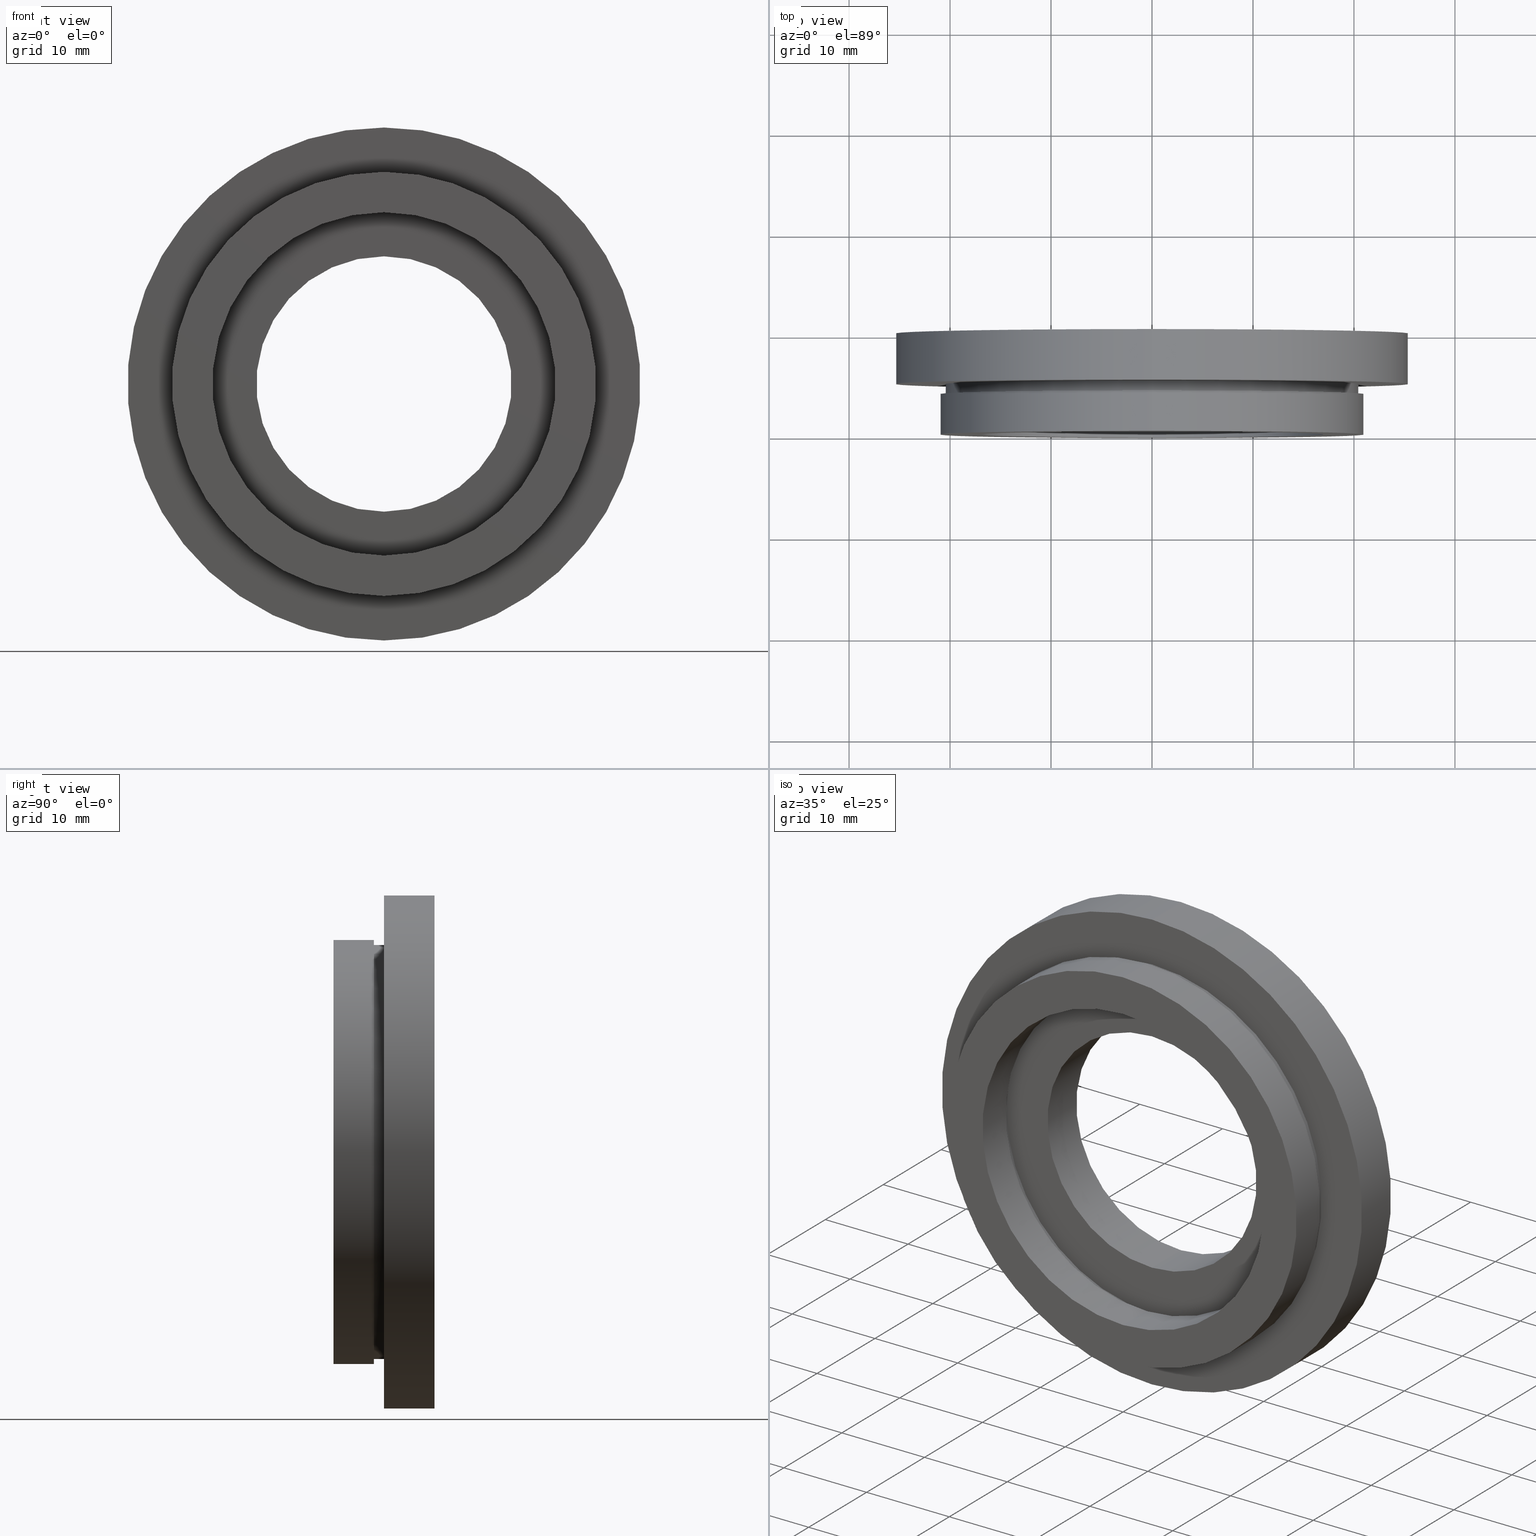
[diagram: canonical four-view strip — front | top / right | iso, engineering-drawing reading convention]
A machine part, canonical four-view strip (front | top / right | iso — engineering-drawing reading convention). The complete STEP part file that produces these views, byte-faithful:
ISO-10303-21;
HEADER;
FILE_DESCRIPTION (( 'STEP AP214' ),
    '1' );
FILE_NAME ('504120.STEP',
    '2019-10-10T06:59:44',
    ( 'user' ),
    ( '΢���й�' ),
    'SwSTEP 2.0',
    'SolidWorks 2016',
    '' );
FILE_SCHEMA (( 'AUTOMOTIVE_DESIGN' ));
ENDSEC;

DATA;
#1 = VERTEX_POINT ( 'NONE', #493 ) ;
#2 = CARTESIAN_POINT ( 'NONE',  ( 0.0000000000000000000, 10.00000000000000000, 0.0000000000000000000 ) ) ;
#3 = PRESENTATION_LAYER_ASSIGNMENT (  '', '', ( #488 ) ) ;
#4 = CARTESIAN_POINT ( 'NONE',  ( 0.0000000000000000000, 0.0000000000000000000, 0.0000000000000000000 ) ) ;
#5 = AXIS2_PLACEMENT_3D ( 'NONE', #318, #568, #622 ) ;
#6 = DIRECTION ( 'NONE',  ( -0.0000000000000000000, 1.000000000000000000, -0.0000000000000000000 ) ) ;
#7 = PRODUCT_RELATED_PRODUCT_CATEGORY ( 'part', '', ( #22 ) ) ;
#8 = ORIENTED_EDGE ( 'NONE', *, *, #431, .F. ) ;
#9 = PLANE ( 'NONE',  #567 ) ;
#10 = ORIENTED_EDGE ( 'NONE', *, *, #144, .F. ) ;
#11 = AXIS2_PLACEMENT_3D ( 'NONE', #181, #411, #29 ) ;
#12 =( LENGTH_UNIT ( ) NAMED_UNIT ( * ) SI_UNIT ( .MILLI., .METRE. ) );
#13 = CARTESIAN_POINT ( 'NONE',  ( 0.0000000000000000000, 4.000000000000000000, 0.0000000000000000000 ) ) ;
#14 = PRESENTATION_LAYER_ASSIGNMENT (  '', '', ( #80 ) ) ;
#15 = ORIENTED_EDGE ( 'NONE', *, *, #209, .F. ) ;
#16 = CARTESIAN_POINT ( 'NONE',  ( 0.0000000000000000000, 4.000000000000000000, 17.60000000000000100 ) ) ;
#17 = FACE_OUTER_BOUND ( 'NONE', #412, .T. ) ;
#18 = AXIS2_PLACEMENT_3D ( 'NONE', #2, #624, #59 ) ;
#19 = CIRCLE ( 'NONE', #109, 21.00000000000000000 ) ;
#20 = DIRECTION ( 'NONE',  ( -0.0000000000000000000, 1.000000000000000000, -0.0000000000000000000 ) ) ;
#21 = DIRECTION ( 'NONE',  ( 0.0000000000000000000, 0.0000000000000000000, 1.000000000000000000 ) ) ;
#22 = PRODUCT ( '504120', '504120', '', ( #94 ) ) ;
#23 = AXIS2_PLACEMENT_3D ( 'NONE', #439, #161, #168 ) ;
#24 = PRESENTATION_LAYER_ASSIGNMENT (  '', '', ( #44 ) ) ;
#25 = AXIS2_PLACEMENT_3D ( 'NONE', #13, #20, #268 ) ;
#26 = VERTEX_POINT ( 'NONE', #142 ) ;
#27 = EDGE_CURVE ( 'NONE', #320, #60, #290, .T. ) ;
#28 =( NAMED_UNIT ( * ) PLANE_ANGLE_UNIT ( ) SI_UNIT ( $, .RADIAN. ) );
#29 = DIRECTION ( 'NONE',  ( 0.0000000000000000000, -0.0000000000000000000, -1.000000000000000000 ) ) ;
#30 = FACE_OUTER_BOUND ( 'NONE', #356, .T. ) ;
#31 = EDGE_LOOP ( 'NONE', ( #32, #556, #113, #262 ) ) ;
#32 = ORIENTED_EDGE ( 'NONE', *, *, #158, .F. ) ;
#33 = EDGE_LOOP ( 'NONE', ( #157, #617 ) ) ;
#34 = FACE_OUTER_BOUND ( 'NONE', #350, .T. ) ;
#35 = EDGE_CURVE ( 'NONE', #220, #266, #114, .T. ) ;
#36 = CARTESIAN_POINT ( 'NONE',  ( 0.0000000000000000000, 4.999999999999999100, 17.60000000000000100 ) ) ;
#37 = CIRCLE ( 'NONE', #610, 25.39999999999999900 ) ;
#38 = DIRECTION ( 'NONE',  ( 0.0000000000000000000, -0.0000000000000000000, -1.000000000000000000 ) ) ;
#39 = SURFACE_STYLE_FILL_AREA ( #308 ) ;
#40 = PRESENTATION_STYLE_ASSIGNMENT (( #205 ) ) ;
#41 = CARTESIAN_POINT ( 'NONE',  ( 2.571758278209441700E-015, 0.0000000000000000000, -21.00000000000000000 ) ) ;
#42 = FACE_BOUND ( 'NONE', #467, .T. ) ;
#43 = ORIENTED_EDGE ( 'NONE', *, *, #158, .T. ) ;
#44 = STYLED_ITEM ( 'NONE', ( #335 ), #349 ) ;
#45 = FACE_BOUND ( 'NONE', #578, .T. ) ;
#46 = AXIS2_PLACEMENT_3D ( 'NONE', #463, #507, #501 ) ;
#47 = CYLINDRICAL_SURFACE ( 'NONE', #314, 12.64500000000000100 ) ;
#48 = DIRECTION ( 'NONE',  ( 0.0000000000000000000, -1.000000000000000000, 0.0000000000000000000 ) ) ;
#49 = COLOUR_RGB ( '',1.000000000000000000, 1.000000000000000000, 1.000000000000000000 ) ;
#50 = AXIS2_PLACEMENT_3D ( 'NONE', #77, #248, #137 ) ;
#51 = CARTESIAN_POINT ( 'NONE',  ( 0.0000000000000000000, 13.74468085106383300, 12.64500000000000100 ) ) ;
#52 = AXIS2_PLACEMENT_3D ( 'NONE', #276, #186, #147 ) ;
#53 = VECTOR ( 'NONE', #343, 1000.000000000000000 ) ;
#54 = AXIS2_PLACEMENT_3D ( 'NONE', #229, #74, #235 ) ;
#55 = EDGE_CURVE ( 'NONE', #443, #587, #19, .T. ) ;
#56 = PRESENTATION_STYLE_ASSIGNMENT (( #561 ) ) ;
#57 = COLOUR_RGB ( '',1.000000000000000000, 1.000000000000000000, 1.000000000000000000 ) ;
#58 = CARTESIAN_POINT ( 'NONE',  ( 0.0000000000000000000, 4.999999999999999100, 0.0000000000000000000 ) ) ;
#59 = DIRECTION ( 'NONE',  ( 0.0000000000000000000, 0.0000000000000000000, 1.000000000000000000 ) ) ;
#60 = VERTEX_POINT ( 'NONE', #480 ) ;
#61 = UNCERTAINTY_MEASURE_WITH_UNIT (LENGTH_MEASURE( 1.000000000000000100E-005 ), #12, 'distance_accuracy_value', 'NONE');
#62 = CARTESIAN_POINT ( 'NONE',  ( 0.0000000000000000000, 4.999999999999999100, 0.0000000000000000000 ) ) ;
#63 = CIRCLE ( 'NONE', #586, 17.00000000000000000 ) ;
#64 = SURFACE_SIDE_STYLE ('',( #237 ) ) ;
#65 = CARTESIAN_POINT ( 'NONE',  ( 1.548565877521828400E-015, 10.00000000000000000, -12.64500000000000100 ) ) ;
#66 = DIRECTION ( 'NONE',  ( 0.0000000000000000000, 0.0000000000000000000, 1.000000000000000000 ) ) ;
#67 =( NAMED_UNIT ( * ) PLANE_ANGLE_UNIT ( ) SI_UNIT ( $, .RADIAN. ) );
#68 = VECTOR ( 'NONE', #468, 1000.000000000000000 ) ;
#69 = DIRECTION ( 'NONE',  ( -0.0000000000000000000, 1.000000000000000000, -0.0000000000000000000 ) ) ;
#70 = EDGE_CURVE ( 'NONE', #495, #459, #131, .T. ) ;
#71 = ORIENTED_EDGE ( 'NONE', *, *, #449, .T. ) ;
#72 = CARTESIAN_POINT ( 'NONE',  ( 0.0000000000000000000, 13.74468085106383300, 0.0000000000000000000 ) ) ;
#73 =( GEOMETRIC_REPRESENTATION_CONTEXT ( 3 ) GLOBAL_UNCERTAINTY_ASSIGNED_CONTEXT ( ( #84 ) ) GLOBAL_UNIT_ASSIGNED_CONTEXT ( ( #378, #375, #489 ) ) REPRESENTATION_CONTEXT ( 'NONE', 'WORKASPACE' ) );
#74 = DIRECTION ( 'NONE',  ( -0.0000000000000000000, 1.000000000000000000, -0.0000000000000000000 ) ) ;
#75 = CARTESIAN_POINT ( 'NONE',  ( 0.0000000000000000000, 4.999999999999999100, 20.50000000000000000 ) ) ;
#76 = CARTESIAN_POINT ( 'NONE',  ( 0.0000000000000000000, 4.000000000000000000, 0.0000000000000000000 ) ) ;
#77 = CARTESIAN_POINT ( 'NONE',  ( 0.0000000000000000000, 9.999999999999998200, 0.0000000000000000000 ) ) ;
#78 =( LENGTH_UNIT ( ) NAMED_UNIT ( * ) SI_UNIT ( .MILLI., .METRE. ) );
#79 = ORIENTED_EDGE ( 'NONE', *, *, #417, .T. ) ;
#80 = STYLED_ITEM ( 'NONE', ( #401 ), #376 ) ;
#81 = CARTESIAN_POINT ( 'NONE',  ( 2.081899558550500300E-015, 13.74468085106383300, -17.00000000000000000 ) ) ;
#82 = EDGE_CURVE ( 'NONE', #294, #267, #106, .T. ) ;
#83 = ORIENTED_EDGE ( 'NONE', *, *, #543, .F. ) ;
#84 = UNCERTAINTY_MEASURE_WITH_UNIT (LENGTH_MEASURE( 1.000000000000000100E-005 ), #378, 'distance_accuracy_value', 'NONE');
#85 = CARTESIAN_POINT ( 'NONE',  ( 2.510525938252074500E-015, 4.999999999999999100, -20.50000000000000000 ) ) ;
#86 = MECHANICAL_DESIGN_GEOMETRIC_PRESENTATION_REPRESENTATION (  '', ( #183 ), #73 ) ;
#87 = VERTEX_POINT ( 'NONE', #16 ) ;
#88 = VECTOR ( 'NONE', #103, 1000.000000000000000 ) ;
#89 = SURFACE_SIDE_STYLE ('',( #239 ) ) ;
#90 = AXIS2_PLACEMENT_3D ( 'NONE', #554, #525, #301 ) ;
#91 = FACE_OUTER_BOUND ( 'NONE', #150, .T. ) ;
#92 =( GEOMETRIC_REPRESENTATION_CONTEXT ( 3 ) GLOBAL_UNCERTAINTY_ASSIGNED_CONTEXT ( ( #503 ) ) GLOBAL_UNIT_ASSIGNED_CONTEXT ( ( #104, #134, #129 ) ) REPRESENTATION_CONTEXT ( 'NONE', 'WORKASPACE' ) );
#93 = DIRECTION ( 'NONE',  ( -0.0000000000000000000, 1.000000000000000000, -0.0000000000000000000 ) ) ;
#94 = PRODUCT_CONTEXT ( 'NONE', #365, 'mechanical' ) ;
#95 = CIRCLE ( 'NONE', #5, 17.60000000000000100 ) ;
#96 = SURFACE_SIDE_STYLE ('',( #39 ) ) ;
#97 = DIRECTION ( 'NONE',  ( -0.0000000000000000000, 1.000000000000000000, -0.0000000000000000000 ) ) ;
#98 = DIRECTION ( 'NONE',  ( 0.0000000000000000000, 0.0000000000000000000, 1.000000000000000000 ) ) ;
#99 = ORIENTED_EDGE ( 'NONE', *, *, #107, .T. ) ;
#100 = DIRECTION ( 'NONE',  ( -0.0000000000000000000, 1.000000000000000000, 0.0000000000000000000 ) ) ;
#101 = VECTOR ( 'NONE', #171, 1000.000000000000000 ) ;
#102 = PRODUCT_DEFINITION_SHAPE ( 'NONE', 'NONE',  #383 ) ;
#103 = DIRECTION ( 'NONE',  ( -0.0000000000000000000, 1.000000000000000000, -0.0000000000000000000 ) ) ;
#104 =( LENGTH_UNIT ( ) NAMED_UNIT ( * ) SI_UNIT ( .MILLI., .METRE. ) );
#105 = PRESENTATION_STYLE_ASSIGNMENT (( #600 ) ) ;
#106 = CIRCLE ( 'NONE', #280, 17.00000000000000000 ) ;
#107 = EDGE_CURVE ( 'NONE', #623, #122, #565, .T. ) ;
#108 = DIRECTION ( 'NONE',  ( -0.0000000000000000000, 1.000000000000000000, -0.0000000000000000000 ) ) ;
#109 = AXIS2_PLACEMENT_3D ( 'NONE', #4, #6, #98 ) ;
#110 = CARTESIAN_POINT ( 'NONE',  ( 0.0000000000000000000, 4.000000000000000000, 0.0000000000000000000 ) ) ;
#111 = UNCERTAINTY_MEASURE_WITH_UNIT (LENGTH_MEASURE( 1.000000000000000100E-005 ), #238, 'distance_accuracy_value', 'NONE');
#112 = DIRECTION ( 'NONE',  ( -0.0000000000000000000, 1.000000000000000000, -0.0000000000000000000 ) ) ;
#113 = ORIENTED_EDGE ( 'NONE', *, *, #348, .T. ) ;
#114 = CIRCLE ( 'NONE', #18, 12.64500000000000100 ) ;
#115 = AXIS2_PLACEMENT_3D ( 'NONE', #409, #408, #531 ) ;
#116 = CARTESIAN_POINT ( 'NONE',  ( 2.081899558550500300E-015, 4.000000000000000000, -17.00000000000000000 ) ) ;
#117 = AXIS2_PLACEMENT_3D ( 'NONE', #476, #557, #621 ) ;
#118 = CARTESIAN_POINT ( 'NONE',  ( 0.0000000000000000000, 4.999999999999999100, 0.0000000000000000000 ) ) ;
#119 = ORIENTED_EDGE ( 'NONE', *, *, #563, .F. ) ;
#120 = CARTESIAN_POINT ( 'NONE',  ( 0.0000000000000000000, 4.000000000000000000, 0.0000000000000000000 ) ) ;
#121 = EDGE_CURVE ( 'NONE', #495, #623, #362, .T. ) ;
#122 = VERTEX_POINT ( 'NONE', #85 ) ;
#123 = DIRECTION ( 'NONE',  ( -0.0000000000000000000, 1.000000000000000000, -0.0000000000000000000 ) ) ;
#124 = ORIENTED_EDGE ( 'NONE', *, *, #516, .F. ) ;
#125 = AXIS2_PLACEMENT_3D ( 'NONE', #369, #397, #353 ) ;
#126 = CARTESIAN_POINT ( 'NONE',  ( 2.510525938252074500E-015, 13.74468085106383300, -20.50000000000000000 ) ) ;
#127 = FACE_OUTER_BOUND ( 'NONE', #599, .T. ) ;
#128 = AXIS2_PLACEMENT_3D ( 'NONE', #333, #143, #506 ) ;
#129 =( NAMED_UNIT ( * ) SI_UNIT ( $, .STERADIAN. ) SOLID_ANGLE_UNIT ( ) );
#130 = FILL_AREA_STYLE_COLOUR ( '', #391 ) ;
#131 = CIRCLE ( 'NONE', #452, 20.50000000000000000 ) ;
#132 = ORIENTED_EDGE ( 'NONE', *, *, #121, .F. ) ;
#133 = CYLINDRICAL_SURFACE ( 'NONE', #125, 25.39999999999999900 ) ;
#134 =( NAMED_UNIT ( * ) PLANE_ANGLE_UNIT ( ) SI_UNIT ( $, .RADIAN. ) );
#135 = FACE_BOUND ( 'NONE', #609, .T. ) ;
#136 = SHAPE_DEFINITION_REPRESENTATION ( #102, #618 ) ;
#137 = DIRECTION ( 'NONE',  ( 0.0000000000000000000, 0.0000000000000000000, 1.000000000000000000 ) ) ;
#138 = CARTESIAN_POINT ( 'NONE',  ( 0.0000000000000000000, 13.74468085106383300, 0.0000000000000000000 ) ) ;
#139 = PRESENTATION_STYLE_ASSIGNMENT (( #562 ) ) ;
#140 = ORIENTED_EDGE ( 'NONE', *, *, #55, .F. ) ;
#141 = CARTESIAN_POINT ( 'NONE',  ( 0.0000000000000000000, 5.000000000000000900, 0.0000000000000000000 ) ) ;
#142 = CARTESIAN_POINT ( 'NONE',  ( 0.0000000000000000000, 4.999999999999999100, 12.64500000000000100 ) ) ;
#143 = DIRECTION ( 'NONE',  ( -0.0000000000000000000, 1.000000000000000000, -0.0000000000000000000 ) ) ;
#144 = EDGE_CURVE ( 'NONE', #587, #443, #174, .T. ) ;
#145 = SURFACE_STYLE_FILL_AREA ( #426 ) ;
#146 = CARTESIAN_POINT ( 'NONE',  ( 3.110602869834276900E-015, 9.999999999999998200, -25.39999999999999900 ) ) ;
#147 = DIRECTION ( 'NONE',  ( 0.0000000000000000000, 0.0000000000000000000, 1.000000000000000000 ) ) ;
#148 = ORIENTED_EDGE ( 'NONE', *, *, #417, .F. ) ;
#149 = CARTESIAN_POINT ( 'NONE',  ( 0.0000000000000000000, 9.999999999999998200, 0.0000000000000000000 ) ) ;
#150 = EDGE_LOOP ( 'NONE', ( #519, #305 ) ) ;
#151 = FACE_OUTER_BOUND ( 'NONE', #260, .T. ) ;
#152 = DIRECTION ( 'NONE',  ( -0.0000000000000000000, 1.000000000000000000, -0.0000000000000000000 ) ) ;
#153 = COLOUR_RGB ( '',1.000000000000000000, 1.000000000000000000, 1.000000000000000000 ) ;
#154 =( NAMED_UNIT ( * ) SI_UNIT ( $, .STERADIAN. ) SOLID_ANGLE_UNIT ( ) );
#155 = AXIS2_PLACEMENT_3D ( 'NONE', #614, #288, #549 ) ;
#156 = ORIENTED_EDGE ( 'NONE', *, *, #82, .T. ) ;
#157 = ORIENTED_EDGE ( 'NONE', *, *, #533, .F. ) ;
#158 = EDGE_CURVE ( 'NONE', #267, #453, #252, .T. ) ;
#159 = DIRECTION ( 'NONE',  ( 0.0000000000000000000, 0.0000000000000000000, 1.000000000000000000 ) ) ;
#160 = AXIS2_PLACEMENT_3D ( 'NONE', #118, #112, #173 ) ;
#161 = DIRECTION ( 'NONE',  ( -0.0000000000000000000, 1.000000000000000000, -0.0000000000000000000 ) ) ;
#162 = STYLED_ITEM ( 'NONE', ( #139 ), #618 ) ;
#163 = VERTEX_POINT ( 'NONE', #263 ) ;
#164 = DIRECTION ( 'NONE',  ( 0.0000000000000000000, 0.0000000000000000000, 1.000000000000000000 ) ) ;
#165 = DIRECTION ( 'NONE',  ( -0.0000000000000000000, 1.000000000000000000, -0.0000000000000000000 ) ) ;
#166 = ORIENTED_EDGE ( 'NONE', *, *, #70, .T. ) ;
#167 = EDGE_CURVE ( 'NONE', #315, #163, #492, .T. ) ;
#168 = DIRECTION ( 'NONE',  ( 0.0000000000000000000, 0.0000000000000000000, 1.000000000000000000 ) ) ;
#169 = VECTOR ( 'NONE', #241, 1000.000000000000000 ) ;
#170 = MECHANICAL_DESIGN_GEOMETRIC_PRESENTATION_REPRESENTATION (  '', ( #80 ), #357 ) ;
#171 = DIRECTION ( 'NONE',  ( -0.0000000000000000000, 1.000000000000000000, -0.0000000000000000000 ) ) ;
#172 = DIRECTION ( 'NONE',  ( -0.0000000000000000000, 1.000000000000000000, -0.0000000000000000000 ) ) ;
#173 = DIRECTION ( 'NONE',  ( 0.0000000000000000000, 0.0000000000000000000, 1.000000000000000000 ) ) ;
#174 = CIRCLE ( 'NONE', #175, 21.00000000000000000 ) ;
#175 = AXIS2_PLACEMENT_3D ( 'NONE', #573, #566, #184 ) ;
#176 =( NAMED_UNIT ( * ) SI_UNIT ( $, .STERADIAN. ) SOLID_ANGLE_UNIT ( ) );
#177 = CARTESIAN_POINT ( 'NONE',  ( 0.0000000000000000000, 0.0000000000000000000, 17.00000000000000000 ) ) ;
#178 = DIRECTION ( 'NONE',  ( 0.0000000000000000000, 0.0000000000000000000, 1.000000000000000000 ) ) ;
#179 = CARTESIAN_POINT ( 'NONE',  ( 0.0000000000000000000, 0.0000000000000000000, 0.0000000000000000000 ) ) ;
#180 = VERTEX_POINT ( 'NONE', #146 ) ;
#181 = CARTESIAN_POINT ( 'NONE',  ( 12.64500000000000100, 9.999999999999998200, 0.0000000000000000000 ) ) ;
#182 = DIRECTION ( 'NONE',  ( 0.0000000000000000000, -1.000000000000000000, 0.0000000000000000000 ) ) ;
#183 = STYLED_ITEM ( 'NONE', ( #56 ), #322 ) ;
#184 = DIRECTION ( 'NONE',  ( 0.0000000000000000000, 0.0000000000000000000, 1.000000000000000000 ) ) ;
#185 = EDGE_LOOP ( 'NONE', ( #99, #540 ) ) ;
#186 = DIRECTION ( 'NONE',  ( -0.0000000000000000000, 1.000000000000000000, -0.0000000000000000000 ) ) ;
#187 = PRESENTATION_LAYER_ASSIGNMENT (  '', '', ( #162 ) ) ;
#188 = PLANE ( 'NONE',  #115 ) ;
#189 = DIRECTION ( 'NONE',  ( 0.0000000000000000000, 0.0000000000000000000, 1.000000000000000000 ) ) ;
#190 = EDGE_CURVE ( 'NONE', #210, #220, #219, .T. ) ;
#191 = ORIENTED_EDGE ( 'NONE', *, *, #470, .F. ) ;
#192 = CARTESIAN_POINT ( 'NONE',  ( 0.0000000000000000000, 13.74468085106383300, 0.0000000000000000000 ) ) ;
#193 = PLANE ( 'NONE',  #212 ) ;
#194 = CARTESIAN_POINT ( 'NONE',  ( 0.0000000000000000000, 4.000000000000000000, 20.50000000000000000 ) ) ;
#195 = DIRECTION ( 'NONE',  ( 0.0000000000000000000, 0.0000000000000000000, 1.000000000000000000 ) ) ;
#196 = VECTOR ( 'NONE', #214, 1000.000000000000000 ) ;
#197 = DIRECTION ( 'NONE',  ( 0.0000000000000000000, 0.0000000000000000000, 1.000000000000000000 ) ) ;
#198 = ORIENTED_EDGE ( 'NONE', *, *, #190, .T. ) ;
#199 = DIRECTION ( 'NONE',  ( 0.0000000000000000000, 0.0000000000000000000, 1.000000000000000000 ) ) ;
#200 = CARTESIAN_POINT ( 'NONE',  ( 0.0000000000000000000, 0.0000000000000000000, 21.00000000000000000 ) ) ;
#201 = LINE ( 'NONE', #464, #196 ) ;
#202 = CARTESIAN_POINT ( 'NONE',  ( 0.0000000000000000000, 10.00000000000000000, 12.64500000000000100 ) ) ;
#203 = EDGE_LOOP ( 'NONE', ( #166, #548, #527, #132 ) ) ;
#204 = AXIS2_PLACEMENT_3D ( 'NONE', #403, #285, #515 ) ;
#205 = SURFACE_STYLE_USAGE ( .BOTH. , #89 ) ;
#206 = VERTEX_POINT ( 'NONE', #273 ) ;
#207 = ORIENTED_EDGE ( 'NONE', *, *, #510, .T. ) ;
#208 = VECTOR ( 'NONE', #442, 1000.000000000000000 ) ;
#209 = EDGE_CURVE ( 'NONE', #26, #266, #502, .T. ) ;
#210 = VERTEX_POINT ( 'NONE', #517 ) ;
#211 = CIRCLE ( 'NONE', #590, 20.50000000000000000 ) ;
#212 = AXIS2_PLACEMENT_3D ( 'NONE', #339, #100, #371 ) ;
#213 = PRESENTATION_STYLE_ASSIGNMENT (( #345 ) ) ;
#214 = DIRECTION ( 'NONE',  ( -0.0000000000000000000, 1.000000000000000000, -0.0000000000000000000 ) ) ;
#215 = CARTESIAN_POINT ( 'NONE',  ( 0.0000000000000000000, 0.0000000000000000000, 0.0000000000000000000 ) ) ;
#216 = MECHANICAL_DESIGN_GEOMETRIC_PRESENTATION_REPRESENTATION (  '', ( #162 ), #251 ) ;
#217 = CIRCLE ( 'NONE', #613, 12.64500000000000100 ) ;
#218 = FILL_AREA_STYLE_COLOUR ( '', #532 ) ;
#219 = LINE ( 'NONE', #336, #594 ) ;
#220 = VERTEX_POINT ( 'NONE', #65 ) ;
#221 = CARTESIAN_POINT ( 'NONE',  ( 0.0000000000000000000, 13.74468085106383300, 20.50000000000000000 ) ) ;
#222 = CARTESIAN_POINT ( 'NONE',  ( 17.60000000000000100, 4.999999999999999100, 0.0000000000000000000 ) ) ;
#223 = CYLINDRICAL_SURFACE ( 'NONE', #616, 12.64500000000000100 ) ;
#224 =( NAMED_UNIT ( * ) PLANE_ANGLE_UNIT ( ) SI_UNIT ( $, .RADIAN. ) );
#225 = DIRECTION ( 'NONE',  ( 0.0000000000000000000, 0.0000000000000000000, 1.000000000000000000 ) ) ;
#226 = ORIENTED_EDGE ( 'NONE', *, *, #209, .T. ) ;
#227 = ORIENTED_EDGE ( 'NONE', *, *, #167, .F. ) ;
#228 = ORIENTED_EDGE ( 'NONE', *, *, #583, .F. ) ;
#229 = CARTESIAN_POINT ( 'NONE',  ( 0.0000000000000000000, 4.999999999999999100, 0.0000000000000000000 ) ) ;
#230 = PLANE ( 'NONE',  #400 ) ;
#231 =( LENGTH_UNIT ( ) NAMED_UNIT ( * ) SI_UNIT ( .MILLI., .METRE. ) );
#232 = CARTESIAN_POINT ( 'NONE',  ( 17.00000000000000000, 3.999999999999999100, 0.0000000000000000000 ) ) ;
#233 = CARTESIAN_POINT ( 'NONE',  ( 0.0000000000000000000, 13.74468085106383300, 0.0000000000000000000 ) ) ;
#234 =( NAMED_UNIT ( * ) SI_UNIT ( $, .STERADIAN. ) SOLID_ANGLE_UNIT ( ) );
#235 = DIRECTION ( 'NONE',  ( 0.0000000000000000000, 0.0000000000000000000, 1.000000000000000000 ) ) ;
#236 = COLOUR_RGB ( '',1.000000000000000000, 1.000000000000000000, 1.000000000000000000 ) ;
#237 = SURFACE_STYLE_FILL_AREA ( #358 ) ;
#238 =( LENGTH_UNIT ( ) NAMED_UNIT ( * ) SI_UNIT ( .MILLI., .METRE. ) );
#239 = SURFACE_STYLE_FILL_AREA ( #247 ) ;
#240 = AXIS2_PLACEMENT_3D ( 'NONE', #310, #450, #597 ) ;
#241 = DIRECTION ( 'NONE',  ( -0.0000000000000000000, 1.000000000000000000, -0.0000000000000000000 ) ) ;
#242 = ORIENTED_EDGE ( 'NONE', *, *, #490, .F. ) ;
#243 = VECTOR ( 'NONE', #254, 1000.000000000000000 ) ;
#244 = ORIENTED_EDGE ( 'NONE', *, *, #490, .T. ) ;
#245 = EDGE_LOOP ( 'NONE', ( #242, #43, #588, #579 ) ) ;
#246 = APPLICATION_PROTOCOL_DEFINITION ( 'draft international standard', 'automotive_design', 1998, #337 ) ;
#247 = FILL_AREA_STYLE ('',( #580 ) ) ;
#248 = DIRECTION ( 'NONE',  ( -0.0000000000000000000, 1.000000000000000000, -0.0000000000000000000 ) ) ;
#249 = CARTESIAN_POINT ( 'NONE',  ( 0.0000000000000000000, 13.74468085106383300, 17.00000000000000000 ) ) ;
#250 = PLANE ( 'NONE',  #546 ) ;
#251 =( GEOMETRIC_REPRESENTATION_CONTEXT ( 3 ) GLOBAL_UNCERTAINTY_ASSIGNED_CONTEXT ( ( #111 ) ) GLOBAL_UNIT_ASSIGNED_CONTEXT ( ( #238, #28, #559 ) ) REPRESENTATION_CONTEXT ( 'NONE', 'WORKASPACE' ) );
#252 = LINE ( 'NONE', #81, #101 ) ;
#253 = EDGE_LOOP ( 'NONE', ( #366, #429, #341, #124 ) ) ;
#254 = DIRECTION ( 'NONE',  ( -0.0000000000000000000, 1.000000000000000000, -0.0000000000000000000 ) ) ;
#255 =( NAMED_UNIT ( * ) PLANE_ANGLE_UNIT ( ) SI_UNIT ( $, .RADIAN. ) );
#256 = PRESENTATION_STYLE_ASSIGNMENT (( #291 ) ) ;
#257 = DIRECTION ( 'NONE',  ( 0.0000000000000000000, -0.0000000000000000000, -1.000000000000000000 ) ) ;
#258 = ORIENTED_EDGE ( 'NONE', *, *, #461, .T. ) ;
#259 = CIRCLE ( 'NONE', #54, 12.64500000000000100 ) ;
#260 = EDGE_LOOP ( 'NONE', ( #496, #83, #226, #359 ) ) ;
#261 =( LENGTH_UNIT ( ) NAMED_UNIT ( * ) SI_UNIT ( .MILLI., .METRE. ) );
#262 = ORIENTED_EDGE ( 'NONE', *, *, #550, .T. ) ;
#263 = CARTESIAN_POINT ( 'NONE',  ( 0.0000000000000000000, 9.999999999999998200, 25.39999999999999900 ) ) ;
#264 = FACE_OUTER_BOUND ( 'NONE', #253, .T. ) ;
#265 = CYLINDRICAL_SURFACE ( 'NONE', #52, 21.00000000000000000 ) ;
#266 = VERTEX_POINT ( 'NONE', #202 ) ;
#267 = VERTEX_POINT ( 'NONE', #319 ) ;
#268 = DIRECTION ( 'NONE',  ( 0.0000000000000000000, 0.0000000000000000000, 1.000000000000000000 ) ) ;
#269 = CIRCLE ( 'NONE', #23, 12.64500000000000100 ) ;
#270 = CYLINDRICAL_SURFACE ( 'NONE', #298, 25.39999999999999900 ) ;
#271 = ORIENTED_EDGE ( 'NONE', *, *, #167, .T. ) ;
#272 = APPLICATION_PROTOCOL_DEFINITION ( 'draft international standard', 'automotive_design', 1998, #365 ) ;
#273 = CARTESIAN_POINT ( 'NONE',  ( 2.155378366499341600E-015, 4.000000000000000000, -17.60000000000000100 ) ) ;
#274 = ORIENTED_EDGE ( 'NONE', *, *, #533, .T. ) ;
#275 = VERTEX_POINT ( 'NONE', #465 ) ;
#276 = CARTESIAN_POINT ( 'NONE',  ( 0.0000000000000000000, 13.74468085106383300, 0.0000000000000000000 ) ) ;
#277 = EDGE_CURVE ( 'NONE', #163, #180, #37, .T. ) ;
#278 = SURFACE_STYLE_FILL_AREA ( #564 ) ;
#279 = CARTESIAN_POINT ( 'NONE',  ( 0.0000000000000000000, 4.000000000000000000, 21.00000000000000000 ) ) ;
#280 = AXIS2_PLACEMENT_3D ( 'NONE', #215, #421, #159 ) ;
#281 = ADVANCED_FACE ( 'NONE', ( #45, #374 ), #9, .F. ) ;
#282 = SURFACE_SIDE_STYLE ('',( #327 ) ) ;
#283 = EDGE_LOOP ( 'NONE', ( #607, #441 ) ) ;
#284 = DIRECTION ( 'NONE',  ( 0.0000000000000000000, 0.0000000000000000000, 1.000000000000000000 ) ) ;
#285 = DIRECTION ( 'NONE',  ( -0.0000000000000000000, 1.000000000000000000, -0.0000000000000000000 ) ) ;
#286 = FILL_AREA_STYLE_COLOUR ( '', #57 ) ;
#287 =( NAMED_UNIT ( * ) SI_UNIT ( $, .STERADIAN. ) SOLID_ANGLE_UNIT ( ) );
#288 = DIRECTION ( 'NONE',  ( -0.0000000000000000000, 1.000000000000000000, -0.0000000000000000000 ) ) ;
#289 = LINE ( 'NONE', #596, #208 ) ;
#290 = CIRCLE ( 'NONE', #46, 21.00000000000000000 ) ;
#291 = SURFACE_STYLE_USAGE ( .BOTH. , #466 ) ;
#292 = EDGE_CURVE ( 'NONE', #453, #1, #63, .T. ) ;
#293 = FILL_AREA_STYLE_COLOUR ( '', #153 ) ;
#294 = VERTEX_POINT ( 'NONE', #177 ) ;
#295 = ORIENTED_EDGE ( 'NONE', *, *, #510, .F. ) ;
#296 = AXIS2_PLACEMENT_3D ( 'NONE', #62, #589, #535 ) ;
#297 = CIRCLE ( 'NONE', #25, 17.00000000000000000 ) ;
#298 = AXIS2_PLACEMENT_3D ( 'NONE', #436, #152, #471 ) ;
#299 = ORIENTED_EDGE ( 'NONE', *, *, #324, .F. ) ;
#300 = LINE ( 'NONE', #462, #68 ) ;
#301 = DIRECTION ( 'NONE',  ( 0.0000000000000000000, 0.0000000000000000000, 1.000000000000000000 ) ) ;
#302 = ADVANCED_FACE ( 'NONE', ( #17 ), #47, .F. ) ;
#303 = ORIENTED_EDGE ( 'NONE', *, *, #608, .F. ) ;
#304 = ORIENTED_EDGE ( 'NONE', *, *, #499, .T. ) ;
#305 = ORIENTED_EDGE ( 'NONE', *, *, #324, .T. ) ;
#306 = CARTESIAN_POINT ( 'NONE',  ( 2.510525938252074500E-015, 4.000000000000000000, -20.50000000000000000 ) ) ;
#307 = MECHANICAL_DESIGN_GEOMETRIC_PRESENTATION_REPRESENTATION (  '', ( #44 ), #446 ) ;
#308 = FILL_AREA_STYLE ('',( #286 ) ) ;
#309 = VECTOR ( 'NONE', #123, 1000.000000000000000 ) ;
#310 = CARTESIAN_POINT ( 'NONE',  ( 0.0000000000000000000, 13.74468085106383300, 0.0000000000000000000 ) ) ;
#311 = VECTOR ( 'NONE', #172, 1000.000000000000000 ) ;
#312 = DIRECTION ( 'NONE',  ( -0.0000000000000000000, 1.000000000000000000, -0.0000000000000000000 ) ) ;
#313 = ADVANCED_FACE ( 'NONE', ( #30, #42 ), #193, .F. ) ;
#314 = AXIS2_PLACEMENT_3D ( 'NONE', #72, #555, #199 ) ;
#315 = VERTEX_POINT ( 'NONE', #406 ) ;
#316 = LINE ( 'NONE', #249, #309 ) ;
#317 = ADVANCED_FACE ( 'NONE', ( #127 ), #133, .T. ) ;
#318 = CARTESIAN_POINT ( 'NONE',  ( 0.0000000000000000000, 4.000000000000000000, 0.0000000000000000000 ) ) ;
#319 = CARTESIAN_POINT ( 'NONE',  ( 2.081899558550500300E-015, 0.0000000000000000000, -17.00000000000000000 ) ) ;
#320 = VERTEX_POINT ( 'NONE', #279 ) ;
#321 = VERTEX_POINT ( 'NONE', #384 ) ;
#322 = ADVANCED_FACE ( 'NONE', ( #151 ), #223, .F. ) ;
#323 = FILL_AREA_STYLE ('',( #130 ) ) ;
#324 = EDGE_CURVE ( 'NONE', #206, #87, #95, .T. ) ;
#325 = FACE_OUTER_BOUND ( 'NONE', #31, .T. ) ;
#326 = ADVANCED_FACE ( 'NONE', ( #135, #91 ), #230, .F. ) ;
#327 = SURFACE_STYLE_FILL_AREA ( #399 ) ;
#328 = ADVANCED_FACE ( 'NONE', ( #34 ), #265, .T. ) ;
#329 = CYLINDRICAL_SURFACE ( 'NONE', #155, 21.00000000000000000 ) ;
#330 =( NAMED_UNIT ( * ) SI_UNIT ( $, .STERADIAN. ) SOLID_ANGLE_UNIT ( ) );
#331 = CARTESIAN_POINT ( 'NONE',  ( 2.155378366499341600E-015, 13.74468085106383300, -17.60000000000000100 ) ) ;
#332 = EDGE_LOOP ( 'NONE', ( #367, #396 ) ) ;
#333 = CARTESIAN_POINT ( 'NONE',  ( 0.0000000000000000000, 5.000000000000000900, 0.0000000000000000000 ) ) ;
#334 = COLOUR_RGB ( '',1.000000000000000000, 1.000000000000000000, 1.000000000000000000 ) ;
#335 = PRESENTATION_STYLE_ASSIGNMENT (( #392 ) ) ;
#336 = CARTESIAN_POINT ( 'NONE',  ( 1.548565877521828400E-015, 13.74468085106383300, -12.64500000000000100 ) ) ;
#337 = APPLICATION_CONTEXT ( 'automotive_design' ) ;
#338 = UNCERTAINTY_MEASURE_WITH_UNIT (LENGTH_MEASURE( 1.000000000000000100E-005 ), #571, 'distance_accuracy_value', 'NONE');
#339 = CARTESIAN_POINT ( 'NONE',  ( 21.00000000000000000, -4.286263797015736600E-016, 0.0000000000000000000 ) ) ;
#340 = ADVANCED_FACE ( 'NONE', ( #440 ), #270, .T. ) ;
#341 = ORIENTED_EDGE ( 'NONE', *, *, #27, .F. ) ;
#342 = ORIENTED_EDGE ( 'NONE', *, *, #550, .F. ) ;
#343 = DIRECTION ( 'NONE',  ( -0.0000000000000000000, 1.000000000000000000, -0.0000000000000000000 ) ) ;
#344 = ADVANCED_FACE ( 'NONE', ( #264 ), #329, .T. ) ;
#345 = SURFACE_STYLE_USAGE ( .BOTH. , #64 ) ;
#346 = MECHANICAL_DESIGN_GEOMETRIC_PRESENTATION_REPRESENTATION (  '', ( #488 ), #428 ) ;
#347 = ORIENTED_EDGE ( 'NONE', *, *, #472, .F. ) ;
#348 = EDGE_CURVE ( 'NONE', #294, #1, #316, .T. ) ;
#349 = ADVANCED_FACE ( 'NONE', ( #325 ), #388, .F. ) ;
#350 = EDGE_LOOP ( 'NONE', ( #485, #497, #494, #479 ) ) ;
#351 = ORIENTED_EDGE ( 'NONE', *, *, #292, .F. ) ;
#352 = SURFACE_STYLE_USAGE ( .BOTH. , #474 ) ;
#353 = DIRECTION ( 'NONE',  ( 0.0000000000000000000, 0.0000000000000000000, 1.000000000000000000 ) ) ;
#354 = AXIS2_PLACEMENT_3D ( 'NONE', #179, #164, #498 ) ;
#355 = CIRCLE ( 'NONE', #591, 25.39999999999999900 ) ;
#356 = EDGE_LOOP ( 'NONE', ( #140, #10 ) ) ;
#357 =( GEOMETRIC_REPRESENTATION_CONTEXT ( 3 ) GLOBAL_UNCERTAINTY_ASSIGNED_CONTEXT ( ( #61 ) ) GLOBAL_UNIT_ASSIGNED_CONTEXT ( ( #12, #67, #154 ) ) REPRESENTATION_CONTEXT ( 'NONE', 'WORKASPACE' ) );
#358 = FILL_AREA_STYLE ('',( #575 ) ) ;
#359 = ORIENTED_EDGE ( 'NONE', *, *, #482, .T. ) ;
#360 = EDGE_CURVE ( 'NONE', #459, #122, #379, .T. ) ;
#361 =( LENGTH_UNIT ( ) NAMED_UNIT ( * ) SI_UNIT ( .MILLI., .METRE. ) );
#362 = LINE ( 'NONE', #221, #88 ) ;
#363 =( GEOMETRIC_REPRESENTATION_CONTEXT ( 3 ) GLOBAL_UNCERTAINTY_ASSIGNED_CONTEXT ( ( #338 ) ) GLOBAL_UNIT_ASSIGNED_CONTEXT ( ( #571, #224, #287 ) ) REPRESENTATION_CONTEXT ( 'NONE', 'WORKASPACE' ) );
#364 = CARTESIAN_POINT ( 'NONE',  ( 0.0000000000000000000, 13.74468085106383300, 21.00000000000000000 ) ) ;
#365 = APPLICATION_CONTEXT ( 'automotive_design' ) ;
#366 = ORIENTED_EDGE ( 'NONE', *, *, #55, .T. ) ;
#367 = ORIENTED_EDGE ( 'NONE', *, *, #499, .F. ) ;
#368 = ADVANCED_FACE ( 'NONE', ( #390 ), #469, .F. ) ;
#369 = CARTESIAN_POINT ( 'NONE',  ( 0.0000000000000000000, 13.74468085106383300, 0.0000000000000000000 ) ) ;
#370 = FACE_OUTER_BOUND ( 'NONE', #245, .T. ) ;
#371 = DIRECTION ( 'NONE',  ( 0.0000000000000000000, 0.0000000000000000000, 1.000000000000000000 ) ) ;
#372 = DIRECTION ( 'NONE',  ( -0.0000000000000000000, 1.000000000000000000, -0.0000000000000000000 ) ) ;
#373 = EDGE_LOOP ( 'NONE', ( #483, #393 ) ) ;
#374 = FACE_OUTER_BOUND ( 'NONE', #511, .T. ) ;
#375 =( NAMED_UNIT ( * ) PLANE_ANGLE_UNIT ( ) SI_UNIT ( $, .RADIAN. ) );
#376 = ADVANCED_FACE ( 'NONE', ( #370 ), #523, .F. ) ;
#377 = UNCERTAINTY_MEASURE_WITH_UNIT (LENGTH_MEASURE( 1.000000000000000100E-005 ), #231, 'distance_accuracy_value', 'NONE');
#378 =( LENGTH_UNIT ( ) NAMED_UNIT ( * ) SI_UNIT ( .MILLI., .METRE. ) );
#379 = LINE ( 'NONE', #126, #381 ) ;
#380 = ADVANCED_FACE ( 'NONE', ( #522 ), #552, .F. ) ;
#381 = VECTOR ( 'NONE', #611, 1000.000000000000000 ) ;
#382 = LINE ( 'NONE', #331, #311 ) ;
#383 = PRODUCT_DEFINITION ( 'δ֪', '', #601, #407 ) ;
#384 = CARTESIAN_POINT ( 'NONE',  ( 2.155378366499341600E-015, 4.999999999999999100, -17.60000000000000100 ) ) ;
#385 = EDGE_LOOP ( 'NONE', ( #295, #191, #410, #304 ) ) ;
#386 = VERTEX_POINT ( 'NONE', #36 ) ;
#387 = DIRECTION ( 'NONE',  ( -0.0000000000000000000, 1.000000000000000000, -0.0000000000000000000 ) ) ;
#388 = CYLINDRICAL_SURFACE ( 'NONE', #117, 17.00000000000000000 ) ;
#389 = PRESENTATION_LAYER_ASSIGNMENT (  '', '', ( #605 ) ) ;
#390 = FACE_OUTER_BOUND ( 'NONE', #385, .T. ) ;
#391 = COLOUR_RGB ( '',1.000000000000000000, 1.000000000000000000, 1.000000000000000000 ) ;
#392 = SURFACE_STYLE_USAGE ( .BOTH. , #282 ) ;
#393 = ORIENTED_EDGE ( 'NONE', *, *, #472, .T. ) ;
#394 = EDGE_CURVE ( 'NONE', #60, #320, #514, .T. ) ;
#395 = CLOSED_SHELL ( 'NONE', ( #344, #405, #317, #302, #380, #376, #349, #326, #368, #430, #322, #425, #340, #423, #416, #281, #328, #313 ) ) ;
#396 = ORIENTED_EDGE ( 'NONE', *, *, #449, .F. ) ;
#397 = DIRECTION ( 'NONE',  ( -0.0000000000000000000, 1.000000000000000000, -0.0000000000000000000 ) ) ;
#398 = MECHANICAL_DESIGN_GEOMETRIC_PRESENTATION_REPRESENTATION (  '', ( #487 ), #363 ) ;
#399 = FILL_AREA_STYLE ('',( #445 ) ) ;
#400 = AXIS2_PLACEMENT_3D ( 'NONE', #232, #182, #38 ) ;
#401 = PRESENTATION_STYLE_ASSIGNMENT (( #352 ) ) ;
#402 = LINE ( 'NONE', #364, #243 ) ;
#403 = CARTESIAN_POINT ( 'NONE',  ( 0.0000000000000000000, 13.74468085106383300, 0.0000000000000000000 ) ) ;
#404 = ORIENTED_EDGE ( 'NONE', *, *, #27, .T. ) ;
#405 = ADVANCED_FACE ( 'NONE', ( #558 ), #570, .T. ) ;
#406 = CARTESIAN_POINT ( 'NONE',  ( 0.0000000000000000000, 5.000000000000000900, 25.39999999999999900 ) ) ;
#407 = PRODUCT_DEFINITION_CONTEXT ( 'detailed design', #337, 'design' ) ;
#408 = DIRECTION ( 'NONE',  ( -0.0000000000000000000, 1.000000000000000000, 0.0000000000000000000 ) ) ;
#409 = CARTESIAN_POINT ( 'NONE',  ( 25.39999999999999900, 5.000000000000000000, 0.0000000000000000000 ) ) ;
#410 = ORIENTED_EDGE ( 'NONE', *, *, #563, .T. ) ;
#411 = DIRECTION ( 'NONE',  ( 0.0000000000000000000, -1.000000000000000000, 0.0000000000000000000 ) ) ;
#412 = EDGE_LOOP ( 'NONE', ( #228, #198, #432, #15 ) ) ;
#413 = EDGE_LOOP ( 'NONE', ( #536, #79, #595, #8 ) ) ;
#414 = DIRECTION ( 'NONE',  ( 0.0000000000000000000, 0.0000000000000000000, 1.000000000000000000 ) ) ;
#415 = CARTESIAN_POINT ( 'NONE',  ( 0.0000000000000000000, 4.000000000000000000, 0.0000000000000000000 ) ) ;
#417 = EDGE_CURVE ( 'NONE', #459, #495, #581, .T. ) ;
#416 = ADVANCED_FACE ( 'NONE', ( #538 ), #572, .T. ) ;
#418 = CIRCLE ( 'NONE', #547, 17.60000000000000100 ) ;
#419 = PRESENTATION_LAYER_ASSIGNMENT (  '', '', ( #183 ) ) ;
#420 = DIRECTION ( 'NONE',  ( 0.0000000000000000000, 0.0000000000000000000, 1.000000000000000000 ) ) ;
#421 = DIRECTION ( 'NONE',  ( -0.0000000000000000000, 1.000000000000000000, -0.0000000000000000000 ) ) ;
#422 =( NAMED_UNIT ( * ) PLANE_ANGLE_UNIT ( ) SI_UNIT ( $, .RADIAN. ) );
#423 = ADVANCED_FACE ( 'NONE', ( #560, #593 ), #188, .F. ) ;
#424 = DIRECTION ( 'NONE',  ( -0.0000000000000000000, 1.000000000000000000, -0.0000000000000000000 ) ) ;
#425 = ADVANCED_FACE ( 'NONE', ( #553, #592 ), #454, .F. ) ;
#426 = FILL_AREA_STYLE ('',( #293 ) ) ;
#427 = CIRCLE ( 'NONE', #455, 17.00000000000000000 ) ;
#428 =( GEOMETRIC_REPRESENTATION_CONTEXT ( 3 ) GLOBAL_UNCERTAINTY_ASSIGNED_CONTEXT ( ( #377 ) ) GLOBAL_UNIT_ASSIGNED_CONTEXT ( ( #231, #422, #176 ) ) REPRESENTATION_CONTEXT ( 'NONE', 'WORKASPACE' ) );
#429 = ORIENTED_EDGE ( 'NONE', *, *, #448, .T. ) ;
#430 = ADVANCED_FACE ( 'NONE', ( #585, #582 ), #250, .F. ) ;
#431 = EDGE_CURVE ( 'NONE', #122, #623, #211, .T. ) ;
#432 = ORIENTED_EDGE ( 'NONE', *, *, #35, .T. ) ;
#433 = MANIFOLD_SOLID_BREP ( '��ת1', #395 ) ;
#434 = PRESENTATION_LAYER_ASSIGNMENT (  '', '', ( #487 ) ) ;
#435 =( GEOMETRIC_REPRESENTATION_CONTEXT ( 3 ) GLOBAL_UNCERTAINTY_ASSIGNED_CONTEXT ( ( #486 ) ) GLOBAL_UNIT_ASSIGNED_CONTEXT ( ( #261, #521, #330 ) ) REPRESENTATION_CONTEXT ( 'NONE', 'WORKASPACE' ) );
#436 = CARTESIAN_POINT ( 'NONE',  ( 0.0000000000000000000, 13.74468085106383300, 0.0000000000000000000 ) ) ;
#437 =( NAMED_UNIT ( * ) PLANE_ANGLE_UNIT ( ) SI_UNIT ( $, .RADIAN. ) );
#438 = CARTESIAN_POINT ( 'NONE',  ( 20.50000000000000000, 4.000000000000000000, 0.0000000000000000000 ) ) ;
#439 = CARTESIAN_POINT ( 'NONE',  ( 0.0000000000000000000, 10.00000000000000000, 0.0000000000000000000 ) ) ;
#440 = FACE_OUTER_BOUND ( 'NONE', #473, .T. ) ;
#441 = ORIENTED_EDGE ( 'NONE', *, *, #35, .F. ) ;
#442 = DIRECTION ( 'NONE',  ( -0.0000000000000000000, 1.000000000000000000, -0.0000000000000000000 ) ) ;
#443 = VERTEX_POINT ( 'NONE', #200 ) ;
#444 = ORIENTED_EDGE ( 'NONE', *, *, #277, .F. ) ;
#445 = FILL_AREA_STYLE_COLOUR ( '', #334 ) ;
#446 =( GEOMETRIC_REPRESENTATION_CONTEXT ( 3 ) GLOBAL_UNCERTAINTY_ASSIGNED_CONTEXT ( ( #577 ) ) GLOBAL_UNIT_ASSIGNED_CONTEXT ( ( #78, #255, #569 ) ) REPRESENTATION_CONTEXT ( 'NONE', 'WORKASPACE' ) );
#447 = CIRCLE ( 'NONE', #50, 25.39999999999999900 ) ;
#448 = EDGE_CURVE ( 'NONE', #587, #60, #300, .T. ) ;
#449 = EDGE_CURVE ( 'NONE', #321, #386, #508, .T. ) ;
#450 = DIRECTION ( 'NONE',  ( -0.0000000000000000000, 1.000000000000000000, -0.0000000000000000000 ) ) ;
#451 = SURFACE_STYLE_FILL_AREA ( #541 ) ;
#452 = AXIS2_PLACEMENT_3D ( 'NONE', #415, #520, #526 ) ;
#453 = VERTEX_POINT ( 'NONE', #116 ) ;
#454 = PLANE ( 'NONE',  #11 ) ;
#455 = AXIS2_PLACEMENT_3D ( 'NONE', #537, #424, #225 ) ;
#456 = DIRECTION ( 'NONE',  ( -0.0000000000000000000, 1.000000000000000000, -0.0000000000000000000 ) ) ;
#457 = SURFACE_STYLE_FILL_AREA ( #323 ) ;
#458 = ORIENTED_EDGE ( 'NONE', *, *, #583, .T. ) ;
#459 = VERTEX_POINT ( 'NONE', #306 ) ;
#460 = SURFACE_SIDE_STYLE ('',( #145 ) ) ;
#461 = EDGE_CURVE ( 'NONE', #275, #315, #491, .T. ) ;
#462 = CARTESIAN_POINT ( 'NONE',  ( 2.571758278209441700E-015, 13.74468085106383300, -21.00000000000000000 ) ) ;
#463 = CARTESIAN_POINT ( 'NONE',  ( 0.0000000000000000000, 4.000000000000000000, 0.0000000000000000000 ) ) ;
#464 = CARTESIAN_POINT ( 'NONE',  ( 3.110602869834276900E-015, 13.74468085106383300, -25.39999999999999900 ) ) ;
#465 = CARTESIAN_POINT ( 'NONE',  ( 3.110602869834276900E-015, 5.000000000000000900, -25.39999999999999900 ) ) ;
#466 = SURFACE_SIDE_STYLE ('',( #278 ) ) ;
#467 = EDGE_LOOP ( 'NONE', ( #156, #244 ) ) ;
#468 = DIRECTION ( 'NONE',  ( -0.0000000000000000000, 1.000000000000000000, -0.0000000000000000000 ) ) ;
#469 = CYLINDRICAL_SURFACE ( 'NONE', #612, 17.60000000000000100 ) ;
#470 = EDGE_CURVE ( 'NONE', #87, #206, #576, .T. ) ;
#471 = DIRECTION ( 'NONE',  ( 0.0000000000000000000, 0.0000000000000000000, 1.000000000000000000 ) ) ;
#472 = EDGE_CURVE ( 'NONE', #180, #163, #447, .T. ) ;
#473 = EDGE_LOOP ( 'NONE', ( #303, #258, #271, #347 ) ) ;
#474 = SURFACE_SIDE_STYLE ('',( #457 ) ) ;
#475 =( GEOMETRIC_REPRESENTATION_CONTEXT ( 3 ) GLOBAL_UNCERTAINTY_ASSIGNED_CONTEXT ( ( #530 ) ) GLOBAL_UNIT_ASSIGNED_CONTEXT ( ( #361, #437, #234 ) ) REPRESENTATION_CONTEXT ( 'NONE', 'WORKASPACE' ) );
#476 = CARTESIAN_POINT ( 'NONE',  ( 0.0000000000000000000, 13.74468085106383300, 0.0000000000000000000 ) ) ;
#477 = DIRECTION ( 'NONE',  ( -0.0000000000000000000, 1.000000000000000000, -0.0000000000000000000 ) ) ;
#478 = AXIS2_PLACEMENT_3D ( 'NONE', #138, #387, #284 ) ;
#479 = ORIENTED_EDGE ( 'NONE', *, *, #394, .F. ) ;
#480 = CARTESIAN_POINT ( 'NONE',  ( 2.571758278209441700E-015, 4.000000000000000000, -21.00000000000000000 ) ) ;
#481 = MECHANICAL_DESIGN_GEOMETRIC_PRESENTATION_REPRESENTATION (  '', ( #605 ), #435 ) ;
#482 = EDGE_CURVE ( 'NONE', #266, #220, #269, .T. ) ;
#483 = ORIENTED_EDGE ( 'NONE', *, *, #277, .T. ) ;
#484 = SURFACE_SIDE_STYLE ('',( #451 ) ) ;
#485 = ORIENTED_EDGE ( 'NONE', *, *, #448, .F. ) ;
#486 = UNCERTAINTY_MEASURE_WITH_UNIT (LENGTH_MEASURE( 1.000000000000000100E-005 ), #261, 'distance_accuracy_value', 'NONE');
#487 = STYLED_ITEM ( 'NONE', ( #105 ), #433 ) ;
#488 = STYLED_ITEM ( 'NONE', ( #256 ), #344 ) ;
#489 =( NAMED_UNIT ( * ) SI_UNIT ( $, .STERADIAN. ) SOLID_ANGLE_UNIT ( ) );
#490 = EDGE_CURVE ( 'NONE', #267, #294, #427, .T. ) ;
#491 = CIRCLE ( 'NONE', #128, 25.39999999999999900 ) ;
#492 = LINE ( 'NONE', #513, #53 ) ;
#493 = CARTESIAN_POINT ( 'NONE',  ( 0.0000000000000000000, 4.000000000000000000, 17.00000000000000000 ) ) ;
#494 = ORIENTED_EDGE ( 'NONE', *, *, #516, .T. ) ;
#495 = VERTEX_POINT ( 'NONE', #194 ) ;
#496 = ORIENTED_EDGE ( 'NONE', *, *, #190, .F. ) ;
#497 = ORIENTED_EDGE ( 'NONE', *, *, #144, .T. ) ;
#498 = DIRECTION ( 'NONE',  ( 1.000000000000000000, 0.0000000000000000000, 0.0000000000000000000 ) ) ;
#499 = EDGE_CURVE ( 'NONE', #386, #321, #418, .T. ) ;
#500 = MECHANICAL_DESIGN_GEOMETRIC_PRESENTATION_REPRESENTATION (  '', ( #545 ), #475 ) ;
#501 = DIRECTION ( 'NONE',  ( 0.0000000000000000000, 0.0000000000000000000, 1.000000000000000000 ) ) ;
#502 = LINE ( 'NONE', #51, #169 ) ;
#503 = UNCERTAINTY_MEASURE_WITH_UNIT (LENGTH_MEASURE( 1.000000000000000100E-005 ), #104, 'distance_accuracy_value', 'NONE');
#504 = AXIS2_PLACEMENT_3D ( 'NONE', #529, #93, #615 ) ;
#505 = DIRECTION ( 'NONE',  ( 0.0000000000000000000, 0.0000000000000000000, 1.000000000000000000 ) ) ;
#506 = DIRECTION ( 'NONE',  ( 0.0000000000000000000, 0.0000000000000000000, 1.000000000000000000 ) ) ;
#507 = DIRECTION ( 'NONE',  ( -0.0000000000000000000, 1.000000000000000000, -0.0000000000000000000 ) ) ;
#508 = CIRCLE ( 'NONE', #296, 17.60000000000000100 ) ;
#509 = DIRECTION ( 'NONE',  ( -0.0000000000000000000, 1.000000000000000000, -0.0000000000000000000 ) ) ;
#510 = EDGE_CURVE ( 'NONE', #206, #321, #382, .T. ) ;
#511 = EDGE_LOOP ( 'NONE', ( #404, #528 ) ) ;
#512 = ORIENTED_EDGE ( 'NONE', *, *, #70, .F. ) ;
#513 = CARTESIAN_POINT ( 'NONE',  ( 0.0000000000000000000, 13.74468085106383300, 25.39999999999999900 ) ) ;
#514 = CIRCLE ( 'NONE', #603, 21.00000000000000000 ) ;
#515 = DIRECTION ( 'NONE',  ( 0.0000000000000000000, 0.0000000000000000000, 1.000000000000000000 ) ) ;
#516 = EDGE_CURVE ( 'NONE', #443, #320, #402, .T. ) ;
#517 = CARTESIAN_POINT ( 'NONE',  ( 1.548565877521828400E-015, 4.999999999999999100, -12.64500000000000100 ) ) ;
#518 = DIRECTION ( 'NONE',  ( -0.0000000000000000000, 1.000000000000000000, -0.0000000000000000000 ) ) ;
#519 = ORIENTED_EDGE ( 'NONE', *, *, #470, .T. ) ;
#520 = DIRECTION ( 'NONE',  ( -0.0000000000000000000, 1.000000000000000000, -0.0000000000000000000 ) ) ;
#521 =( NAMED_UNIT ( * ) PLANE_ANGLE_UNIT ( ) SI_UNIT ( $, .RADIAN. ) );
#522 = FACE_OUTER_BOUND ( 'NONE', #598, .T. ) ;
#523 = CYLINDRICAL_SURFACE ( 'NONE', #504, 17.00000000000000000 ) ;
#524 = DIRECTION ( 'NONE',  ( 0.0000000000000000000, 0.0000000000000000000, 1.000000000000000000 ) ) ;
#525 = DIRECTION ( 'NONE',  ( -0.0000000000000000000, 1.000000000000000000, -0.0000000000000000000 ) ) ;
#526 = DIRECTION ( 'NONE',  ( 0.0000000000000000000, 0.0000000000000000000, 1.000000000000000000 ) ) ;
#527 = ORIENTED_EDGE ( 'NONE', *, *, #107, .F. ) ;
#528 = ORIENTED_EDGE ( 'NONE', *, *, #394, .T. ) ;
#529 = CARTESIAN_POINT ( 'NONE',  ( 0.0000000000000000000, 13.74468085106383300, 0.0000000000000000000 ) ) ;
#530 = UNCERTAINTY_MEASURE_WITH_UNIT (LENGTH_MEASURE( 1.000000000000000100E-005 ), #361, 'distance_accuracy_value', 'NONE');
#531 = DIRECTION ( 'NONE',  ( 0.0000000000000000000, 0.0000000000000000000, 1.000000000000000000 ) ) ;
#532 = COLOUR_RGB ( '',1.000000000000000000, 1.000000000000000000, 1.000000000000000000 ) ;
#533 = EDGE_CURVE ( 'NONE', #315, #275, #355, .T. ) ;
#534 = PRESENTATION_LAYER_ASSIGNMENT (  '', '', ( #545 ) ) ;
#535 = DIRECTION ( 'NONE',  ( 0.0000000000000000000, 0.0000000000000000000, 1.000000000000000000 ) ) ;
#536 = ORIENTED_EDGE ( 'NONE', *, *, #360, .F. ) ;
#537 = CARTESIAN_POINT ( 'NONE',  ( 0.0000000000000000000, 0.0000000000000000000, 0.0000000000000000000 ) ) ;
#538 = FACE_OUTER_BOUND ( 'NONE', #413, .T. ) ;
#539 = AXIS2_PLACEMENT_3D ( 'NONE', #110, #97, #414 ) ;
#540 = ORIENTED_EDGE ( 'NONE', *, *, #431, .T. ) ;
#541 = FILL_AREA_STYLE ('',( #544 ) ) ;
#542 = EDGE_LOOP ( 'NONE', ( #620, #458 ) ) ;
#543 = EDGE_CURVE ( 'NONE', #26, #210, #217, .T. ) ;
#544 = FILL_AREA_STYLE_COLOUR ( '', #604 ) ;
#545 = STYLED_ITEM ( 'NONE', ( #213 ), #302 ) ;
#546 = AXIS2_PLACEMENT_3D ( 'NONE', #222, #606, #66 ) ;
#547 = AXIS2_PLACEMENT_3D ( 'NONE', #551, #372, #505 ) ;
#548 = ORIENTED_EDGE ( 'NONE', *, *, #360, .T. ) ;
#549 = DIRECTION ( 'NONE',  ( 0.0000000000000000000, 0.0000000000000000000, 1.000000000000000000 ) ) ;
#550 = EDGE_CURVE ( 'NONE', #1, #453, #297, .T. ) ;
#551 = CARTESIAN_POINT ( 'NONE',  ( 0.0000000000000000000, 4.999999999999999100, 0.0000000000000000000 ) ) ;
#552 = CYLINDRICAL_SURFACE ( 'NONE', #478, 17.60000000000000100 ) ;
#553 = FACE_BOUND ( 'NONE', #283, .T. ) ;
#554 = CARTESIAN_POINT ( 'NONE',  ( 0.0000000000000000000, 4.000000000000000000, 0.0000000000000000000 ) ) ;
#555 = DIRECTION ( 'NONE',  ( -0.0000000000000000000, 1.000000000000000000, -0.0000000000000000000 ) ) ;
#556 = ORIENTED_EDGE ( 'NONE', *, *, #82, .F. ) ;
#557 = DIRECTION ( 'NONE',  ( -0.0000000000000000000, 1.000000000000000000, -0.0000000000000000000 ) ) ;
#558 = FACE_OUTER_BOUND ( 'NONE', #203, .T. ) ;
#559 =( NAMED_UNIT ( * ) SI_UNIT ( $, .STERADIAN. ) SOLID_ANGLE_UNIT ( ) );
#560 = FACE_OUTER_BOUND ( 'NONE', #33, .T. ) ;
#561 = SURFACE_STYLE_USAGE ( .BOTH. , #96 ) ;
#562 = SURFACE_STYLE_USAGE ( .BOTH. , #460 ) ;
#563 = EDGE_CURVE ( 'NONE', #87, #386, #289, .T. ) ;
#564 = FILL_AREA_STYLE ('',( #218 ) ) ;
#565 = CIRCLE ( 'NONE', #160, 20.50000000000000000 ) ;
#566 = DIRECTION ( 'NONE',  ( -0.0000000000000000000, 1.000000000000000000, -0.0000000000000000000 ) ) ;
#567 = AXIS2_PLACEMENT_3D ( 'NONE', #438, #48, #257 ) ;
#568 = DIRECTION ( 'NONE',  ( -0.0000000000000000000, 1.000000000000000000, -0.0000000000000000000 ) ) ;
#569 =( NAMED_UNIT ( * ) SI_UNIT ( $, .STERADIAN. ) SOLID_ANGLE_UNIT ( ) );
#570 = CYLINDRICAL_SURFACE ( 'NONE', #240, 20.50000000000000000 ) ;
#571 =( LENGTH_UNIT ( ) NAMED_UNIT ( * ) SI_UNIT ( .MILLI., .METRE. ) );
#572 = CYLINDRICAL_SURFACE ( 'NONE', #204, 20.50000000000000000 ) ;
#573 = CARTESIAN_POINT ( 'NONE',  ( 0.0000000000000000000, 0.0000000000000000000, 0.0000000000000000000 ) ) ;
#574 = CARTESIAN_POINT ( 'NONE',  ( 0.0000000000000000000, 4.999999999999999100, 0.0000000000000000000 ) ) ;
#575 = FILL_AREA_STYLE_COLOUR ( '', #236 ) ;
#576 = CIRCLE ( 'NONE', #90, 17.60000000000000100 ) ;
#577 = UNCERTAINTY_MEASURE_WITH_UNIT (LENGTH_MEASURE( 1.000000000000000100E-005 ), #78, 'distance_accuracy_value', 'NONE');
#578 = EDGE_LOOP ( 'NONE', ( #512, #148 ) ) ;
#579 = ORIENTED_EDGE ( 'NONE', *, *, #348, .F. ) ;
#580 = FILL_AREA_STYLE_COLOUR ( '', #49 ) ;
#581 = CIRCLE ( 'NONE', #539, 20.50000000000000000 ) ;
#582 = FACE_BOUND ( 'NONE', #542, .T. ) ;
#583 = EDGE_CURVE ( 'NONE', #210, #26, #259, .T. ) ;
#584 = DIRECTION ( 'NONE',  ( -0.0000000000000000000, 1.000000000000000000, -0.0000000000000000000 ) ) ;
#585 = FACE_OUTER_BOUND ( 'NONE', #332, .T. ) ;
#586 = AXIS2_PLACEMENT_3D ( 'NONE', #76, #69, #21 ) ;
#587 = VERTEX_POINT ( 'NONE', #41 ) ;
#588 = ORIENTED_EDGE ( 'NONE', *, *, #292, .T. ) ;
#589 = DIRECTION ( 'NONE',  ( -0.0000000000000000000, 1.000000000000000000, -0.0000000000000000000 ) ) ;
#590 = AXIS2_PLACEMENT_3D ( 'NONE', #58, #584, #420 ) ;
#591 = AXIS2_PLACEMENT_3D ( 'NONE', #141, #518, #178 ) ;
#592 = FACE_OUTER_BOUND ( 'NONE', #373, .T. ) ;
#593 = FACE_BOUND ( 'NONE', #185, .T. ) ;
#594 = VECTOR ( 'NONE', #509, 1000.000000000000000 ) ;
#595 = ORIENTED_EDGE ( 'NONE', *, *, #121, .T. ) ;
#596 = CARTESIAN_POINT ( 'NONE',  ( 0.0000000000000000000, 13.74468085106383300, 17.60000000000000100 ) ) ;
#597 = DIRECTION ( 'NONE',  ( 0.0000000000000000000, 0.0000000000000000000, 1.000000000000000000 ) ) ;
#598 = EDGE_LOOP ( 'NONE', ( #299, #207, #71, #119 ) ) ;
#599 = EDGE_LOOP ( 'NONE', ( #274, #602, #444, #227 ) ) ;
#600 = SURFACE_STYLE_USAGE ( .BOTH. , #484 ) ;
#601 = PRODUCT_DEFINITION_FORMATION_WITH_SPECIFIED_SOURCE ( '�κ�', '', #22, .NOT_KNOWN. ) ;
#602 = ORIENTED_EDGE ( 'NONE', *, *, #608, .T. ) ;
#603 = AXIS2_PLACEMENT_3D ( 'NONE', #120, #456, #524 ) ;
#604 = COLOUR_RGB ( '',1.000000000000000000, 1.000000000000000000, 1.000000000000000000 ) ;
#605 = STYLED_ITEM ( 'NONE', ( #40 ), #328 ) ;
#606 = DIRECTION ( 'NONE',  ( -0.0000000000000000000, 1.000000000000000000, 0.0000000000000000000 ) ) ;
#607 = ORIENTED_EDGE ( 'NONE', *, *, #482, .F. ) ;
#608 = EDGE_CURVE ( 'NONE', #275, #180, #201, .T. ) ;
#609 = EDGE_LOOP ( 'NONE', ( #342, #351 ) ) ;
#610 = AXIS2_PLACEMENT_3D ( 'NONE', #149, #477, #195 ) ;
#611 = DIRECTION ( 'NONE',  ( -0.0000000000000000000, 1.000000000000000000, -0.0000000000000000000 ) ) ;
#612 = AXIS2_PLACEMENT_3D ( 'NONE', #233, #165, #619 ) ;
#613 = AXIS2_PLACEMENT_3D ( 'NONE', #574, #108, #197 ) ;
#614 = CARTESIAN_POINT ( 'NONE',  ( 0.0000000000000000000, 13.74468085106383300, 0.0000000000000000000 ) ) ;
#615 = DIRECTION ( 'NONE',  ( 0.0000000000000000000, 0.0000000000000000000, 1.000000000000000000 ) ) ;
#616 = AXIS2_PLACEMENT_3D ( 'NONE', #192, #312, #189 ) ;
#617 = ORIENTED_EDGE ( 'NONE', *, *, #461, .F. ) ;
#618 = ADVANCED_BREP_SHAPE_REPRESENTATION ( '504120', ( #433, #354 ), #92 ) ;
#619 = DIRECTION ( 'NONE',  ( 0.0000000000000000000, 0.0000000000000000000, 1.000000000000000000 ) ) ;
#620 = ORIENTED_EDGE ( 'NONE', *, *, #543, .T. ) ;
#621 = DIRECTION ( 'NONE',  ( 0.0000000000000000000, 0.0000000000000000000, 1.000000000000000000 ) ) ;
#622 = DIRECTION ( 'NONE',  ( 0.0000000000000000000, 0.0000000000000000000, 1.000000000000000000 ) ) ;
#623 = VERTEX_POINT ( 'NONE', #75 ) ;
#624 = DIRECTION ( 'NONE',  ( -0.0000000000000000000, 1.000000000000000000, -0.0000000000000000000 ) ) ;
ENDSEC;
END-ISO-10303-21;
